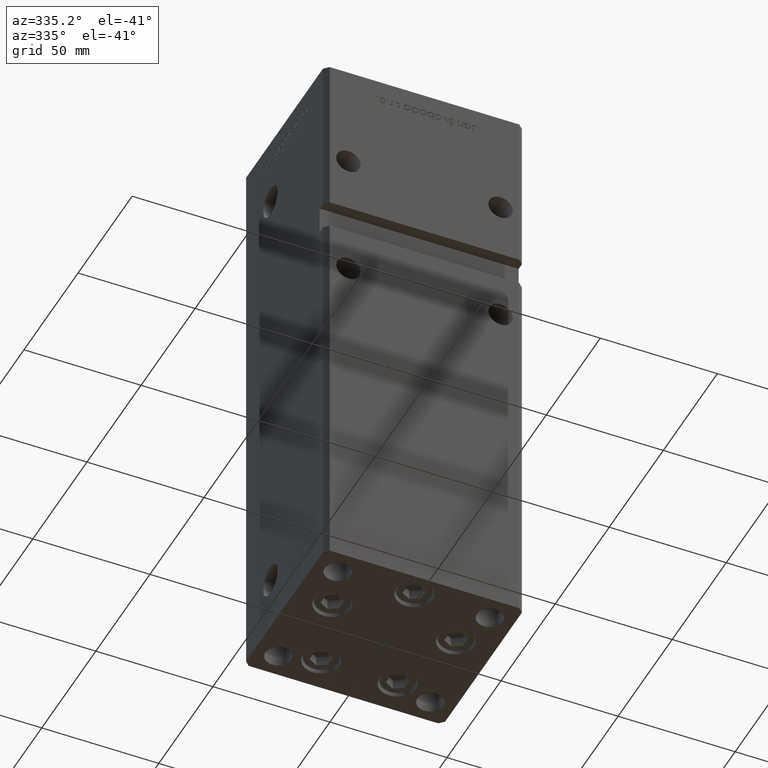
[diagram: clean part render]
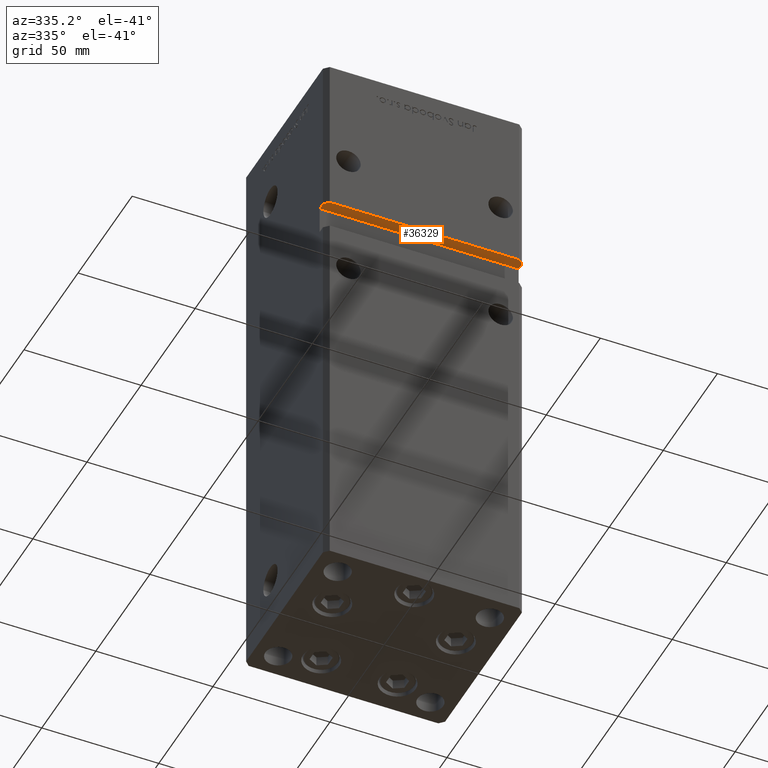
[diagram: same view with one face highlighted and labeled with its STEP entity id]
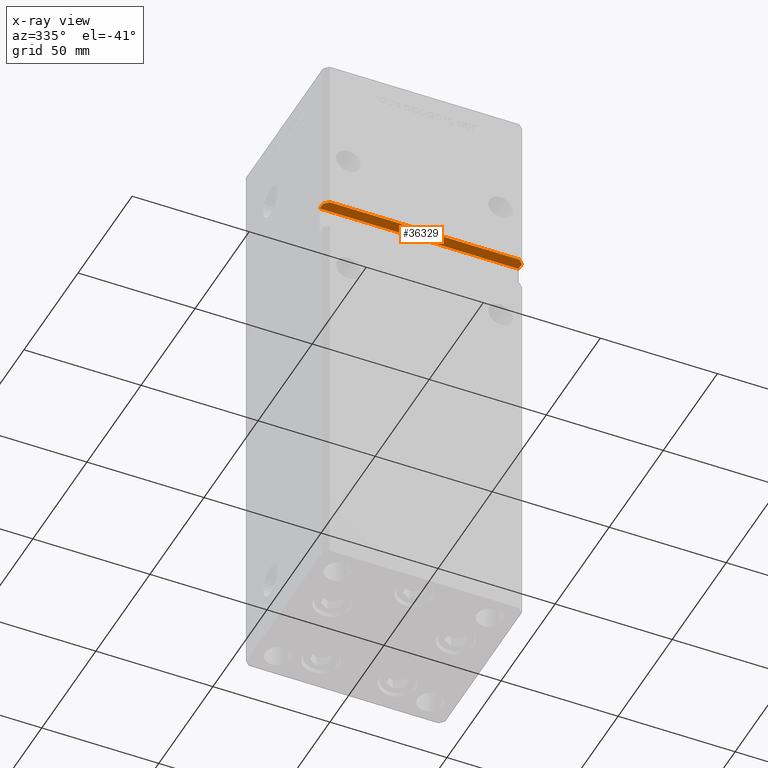
[diagram: x-ray of the same camera — body ghosted, the highlighted face saturated]
A machine part, auxiliary view. The second image highlights one B-rep face of the part: STEP entity #36329.
The next image is the same camera in x-ray: the body ghosted, the highlighted face saturated — about 0% of this face is hidden behind the body in this view.
In plain terms, the highlighted planar face has unit normal (0, 0, 1).
Its self-contained STEP definition (entity closure, byte-faithful):
#1297 = FACE_OUTER_BOUND ( 'NONE', #34796, .T. ) ;
#2700 = VERTEX_POINT ( 'NONE', #13657 ) ;
#3859 = EDGE_CURVE ( 'NONE', #45684, #9677, #13993, .T. ) ;
#5304 = CARTESIAN_POINT ( 'NONE',  ( -42.49999999999998579, -32.50000000000000711, 164.0000000000000284 ) ) ;
#5547 = EDGE_CURVE ( 'NONE', #46564, #2700, #42120, .T. ) ;
#5769 = ORIENTED_EDGE ( 'NONE', *, *, #3859, .F. ) ;
#9677 = VERTEX_POINT ( 'NONE', #22875 ) ;
#10515 = VECTOR ( 'NONE', #34837, 1000.000000000000000 ) ;
#10544 = VECTOR ( 'NONE', #16236, 1000.000000000000000 ) ;
#10803 = LINE ( 'NONE', #12304, #50147 ) ;
#11030 = EDGE_CURVE ( 'NONE', #45492, #9677, #14136, .T. ) ;
#12304 = CARTESIAN_POINT ( 'NONE',  ( -42.49999999999998579, -32.50000000000000711, 164.0000000000000284 ) ) ;
#13419 = CARTESIAN_POINT ( 'NONE',  ( -42.49999999999998579, -32.50000000000000711, 164.0000000000000284 ) ) ;
#13657 = CARTESIAN_POINT ( 'NONE',  ( -42.49999999999998579, -32.50000000000000711, 164.0000000000000284 ) ) ;
#13937 = VECTOR ( 'NONE', #38712, 1000.000000000000114 ) ;
#13993 = LINE ( 'NONE', #25564, #13937 ) ;
#14136 = LINE ( 'NONE', #18441, #10515 ) ;
#16236 = DIRECTION ( 'NONE',  ( -0.000000000000000000, -1.000000000000000000, -0.000000000000000000 ) ) ;
#17444 = DIRECTION ( 'NONE',  ( 1.000000000000000000, 0.000000000000000000, -0.000000000000000000 ) ) ;
#18441 = CARTESIAN_POINT ( 'NONE',  ( -42.49999999999998579, -37.50000000000000711, 164.0000000000000284 ) ) ;
#21389 = EDGE_CURVE ( 'NONE', #2700, #45684, #10803, .T. ) ;
#21403 = VERTEX_POINT ( 'NONE', #22906 ) ;
#21916 = CARTESIAN_POINT ( 'NONE',  ( 40.49999999999997868, -37.50000000000000711, 164.0000000000000284 ) ) ;
#22211 = AXIS2_PLACEMENT_3D ( 'NONE', #13419, #28565, #17444 ) ;
#22875 = CARTESIAN_POINT ( 'NONE',  ( -40.49999999999998579, -37.50000000000000711, 164.0000000000000284 ) ) ;
#22906 = CARTESIAN_POINT ( 'NONE',  ( 42.49999999999998579, -35.50000000000000711, 164.0000000000000284 ) ) ;
#23181 = CARTESIAN_POINT ( 'NONE',  ( 42.49999999999998579, -35.50000000000000711, 164.0000000000000284 ) ) ;
#23722 = ORIENTED_EDGE ( 'NONE', *, *, #5547, .F. ) ;
#25564 = CARTESIAN_POINT ( 'NONE',  ( -42.49999999999998579, -35.50000000000000711, 164.0000000000000284 ) ) ;
#28565 = DIRECTION ( 'NONE',  ( 0.000000000000000000, 0.000000000000000000, 1.000000000000000000 ) ) ;
#28580 = VECTOR ( 'NONE', #29521, 1000.000000000000000 ) ;
#29521 = DIRECTION ( 'NONE',  ( -1.000000000000000000, -0.000000000000000000, -0.000000000000000000 ) ) ;
#31118 = LINE ( 'NONE', #40412, #10544 ) ;
#31526 = EDGE_CURVE ( 'NONE', #21403, #45492, #44630, .T. ) ;
#32304 = ORIENTED_EDGE ( 'NONE', *, *, #21389, .F. ) ;
#33428 = ORIENTED_EDGE ( 'NONE', *, *, #11030, .T. ) ;
#33889 = CARTESIAN_POINT ( 'NONE',  ( 42.49999999999998579, -32.50000000000000711, 164.0000000000000284 ) ) ;
#34367 = PLANE ( 'NONE',  #22211 ) ;
#34796 = EDGE_LOOP ( 'NONE', ( #32304, #23722, #49252, #43666, #33428, #5769 ) ) ;
#34837 = DIRECTION ( 'NONE',  ( -1.000000000000000000, -0.000000000000000000, -0.000000000000000000 ) ) ;
#36329 = ADVANCED_FACE ( 'NONE', ( #1297 ), #34367, .F. ) ;
#38712 = DIRECTION ( 'NONE',  ( 0.7071067811865474617, -0.7071067811865474617, 0.000000000000000000 ) ) ;
#40412 = CARTESIAN_POINT ( 'NONE',  ( 42.49999999999998579, -32.50000000000000711, 164.0000000000000284 ) ) ;
#42120 = LINE ( 'NONE', #5304, #28580 ) ;
#43666 = ORIENTED_EDGE ( 'NONE', *, *, #31526, .T. ) ;
#44544 = DIRECTION ( 'NONE',  ( -0.000000000000000000, -1.000000000000000000, -0.000000000000000000 ) ) ;
#44630 = LINE ( 'NONE', #23181, #47893 ) ;
#45492 = VERTEX_POINT ( 'NONE', #21916 ) ;
#45684 = VERTEX_POINT ( 'NONE', #50006 ) ;
#46179 = EDGE_CURVE ( 'NONE', #46564, #21403, #31118, .T. ) ;
#46564 = VERTEX_POINT ( 'NONE', #33889 ) ;
#47893 = VECTOR ( 'NONE', #52152, 1000.000000000000114 ) ;
#49252 = ORIENTED_EDGE ( 'NONE', *, *, #46179, .T. ) ;
#50006 = CARTESIAN_POINT ( 'NONE',  ( -42.49999999999998579, -35.50000000000001421, 164.0000000000000284 ) ) ;
#50147 = VECTOR ( 'NONE', #44544, 1000.000000000000000 ) ;
#52152 = DIRECTION ( 'NONE',  ( -0.7071067811865474617, -0.7071067811865474617, 0.000000000000000000 ) ) ;